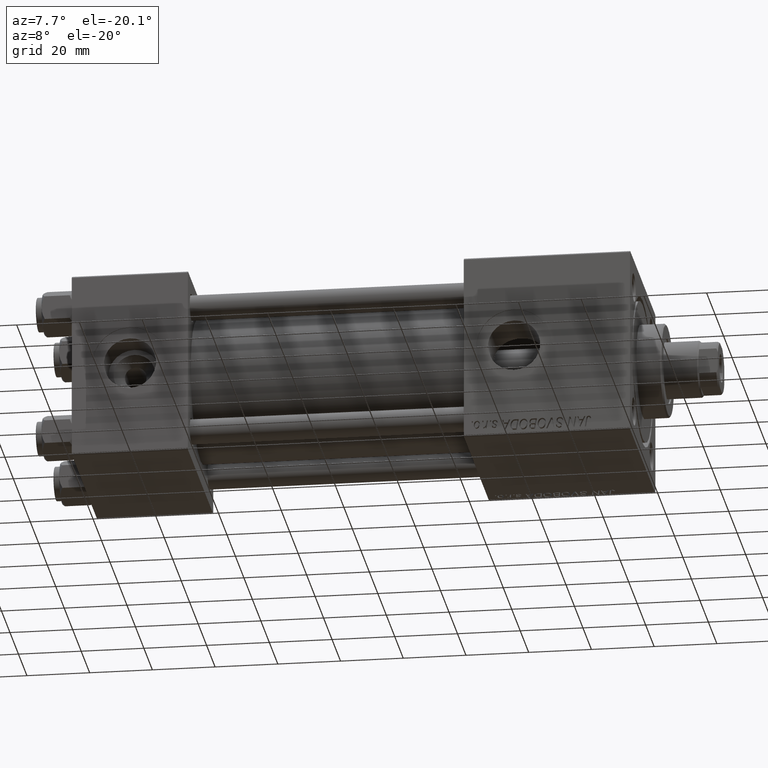
[diagram: clean part render]
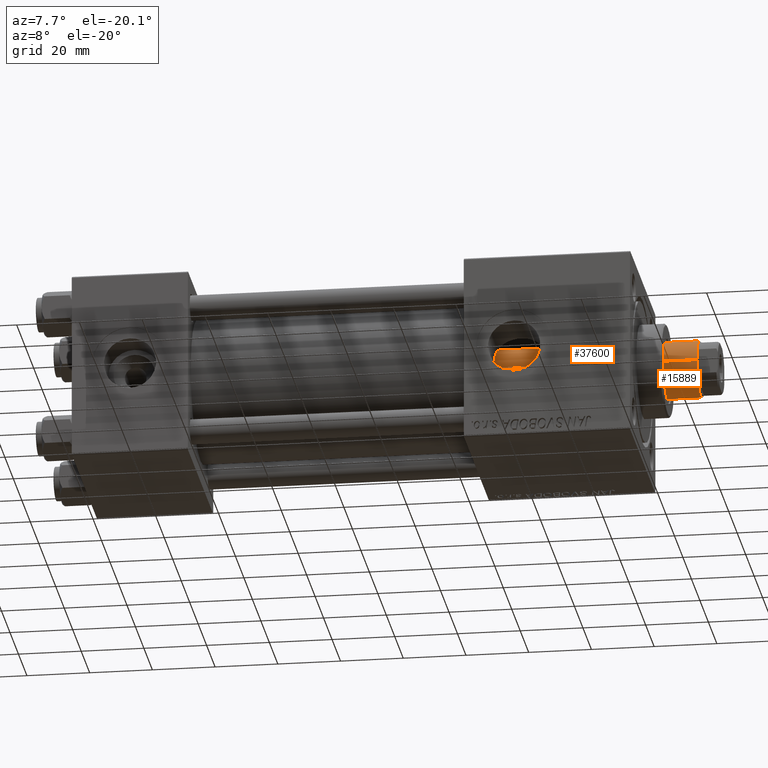
[diagram: same view with one multi-face feature highlighted, each face labeled with its STEP entity id]
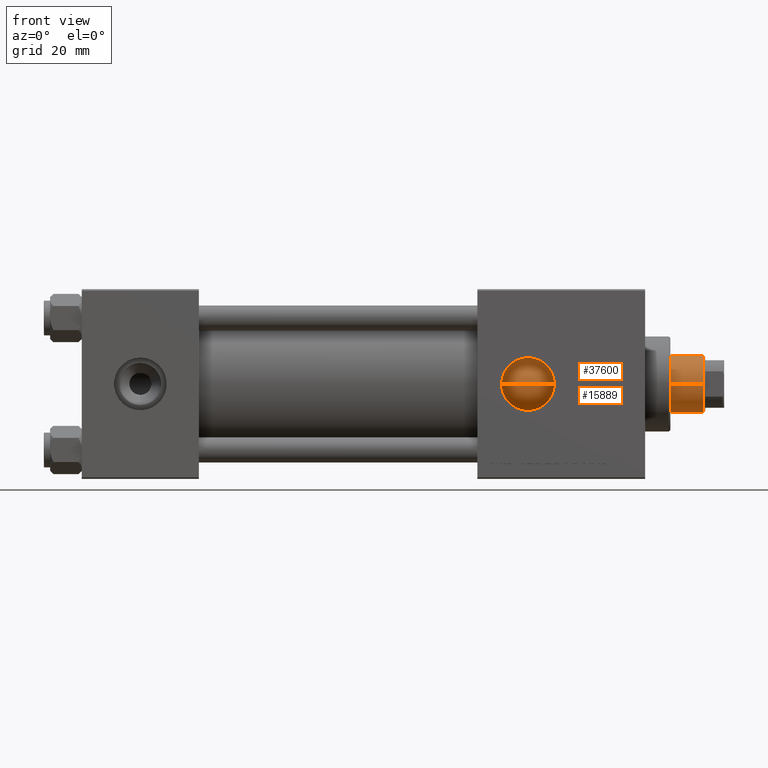
[diagram: same view with one multi-face feature highlighted, each face labeled with its STEP entity id]
A machine part, auxiliary view. The highlighted faces form ONE feature: a constant-radius fillet chain: 2 tangent blend faces with common blend radius 9 mm. The faces share edges in the B-rep.
A second angle (front view) of the same feature is appended — it is thin or edge-on in the first view.
Their STEP definitions:
[1] entity #15889 (Cylinder):
#1291 = DIRECTION ( 'NONE',  ( 1.000000000000000000, 0.000000000000000000, 0.000000000000000000 ) ) ;
#2055 = EDGE_CURVE ( 'NONE', #18098, #21795, #17905, .T. ) ;
#2805 = CARTESIAN_POINT ( 'NONE',  ( -9.000000000000000000, 0.000000000000000000, 159.5000000000000853 ) ) ;
#3139 = DIRECTION ( 'NONE',  ( -0.000000000000000000, -0.000000000000000000, -1.000000000000000000 ) ) ;
#3195 = EDGE_LOOP ( 'NONE', ( #49675, #43947, #26848, #43307 ) ) ;
#4115 = AXIS2_PLACEMENT_3D ( 'NONE', #48935, #18721, #6032 ) ;
#6032 = DIRECTION ( 'NONE',  ( 1.000000000000000000, 0.000000000000000000, 0.000000000000000000 ) ) ;
#7223 = CARTESIAN_POINT ( 'NONE',  ( 9.000000000000000000, 1.102182119232617517E-15, 160.0000000000000000 ) ) ;
#8074 = EDGE_CURVE ( 'NONE', #21795, #19104, #20091, .T. ) ;
#13131 = CARTESIAN_POINT ( 'NONE',  ( 9.000000000000000000, 1.102182119232617517E-15, 38.00000000000000000 ) ) ;
#13887 = CIRCLE ( 'NONE', #4115, 9.000000000000000000 ) ;
#14589 = FACE_OUTER_BOUND ( 'NONE', #3195, .T. ) ;
#15621 = EDGE_CURVE ( 'NONE', #50178, #19104, #35673, .T. ) ;
#15889 = ADVANCED_FACE ( 'NONE', ( #14589 ), #30057, .T. ) ;
#17905 = LINE ( 'NONE', #7223, #27615 ) ;
#18098 = VERTEX_POINT ( 'NONE', #45794 ) ;
#18721 = DIRECTION ( 'NONE',  ( 0.000000000000000000, 0.000000000000000000, -1.000000000000000000 ) ) ;
#19104 = VERTEX_POINT ( 'NONE', #47177 ) ;
#19956 = CARTESIAN_POINT ( 'NONE',  ( -9.000000000000000000, 0.000000000000000000, 160.0000000000000000 ) ) ;
#20091 = CIRCLE ( 'NONE', #49248, 9.000000000000000000 ) ;
#20194 = EDGE_CURVE ( 'NONE', #50178, #18098, #13887, .T. ) ;
#21795 = VERTEX_POINT ( 'NONE', #13131 ) ;
#22700 = DIRECTION ( 'NONE',  ( -1.000000000000000000, 0.000000000000000000, 0.000000000000000000 ) ) ;
#26508 = DIRECTION ( 'NONE',  ( -0.000000000000000000, -0.000000000000000000, -1.000000000000000000 ) ) ;
#26848 = ORIENTED_EDGE ( 'NONE', *, *, #8074, .T. ) ;
#27615 = VECTOR ( 'NONE', #26508, 1000.000000000000000 ) ;
#27969 = DIRECTION ( 'NONE',  ( 0.000000000000000000, 0.000000000000000000, 1.000000000000000000 ) ) ;
#28294 = AXIS2_PLACEMENT_3D ( 'NONE', #42250, #3139, #22700 ) ;
#30057 = CYLINDRICAL_SURFACE ( 'NONE', #28294, 9.000000000000000000 ) ;
#35673 = LINE ( 'NONE', #19956, #42114 ) ;
#42114 = VECTOR ( 'NONE', #47611, 1000.000000000000000 ) ;
#42250 = CARTESIAN_POINT ( 'NONE',  ( 0.000000000000000000, 0.000000000000000000, 160.0000000000000000 ) ) ;
#43307 = ORIENTED_EDGE ( 'NONE', *, *, #15621, .F. ) ;
#43947 = ORIENTED_EDGE ( 'NONE', *, *, #2055, .T. ) ;
#45794 = CARTESIAN_POINT ( 'NONE',  ( 9.000000000000000000, 1.102182119232617517E-15, 159.5000000000000853 ) ) ;
#47177 = CARTESIAN_POINT ( 'NONE',  ( -9.000000000000000000, 0.000000000000000000, 38.00000000000000000 ) ) ;
#47611 = DIRECTION ( 'NONE',  ( -0.000000000000000000, -0.000000000000000000, -1.000000000000000000 ) ) ;
#47767 = CARTESIAN_POINT ( 'NONE',  ( 0.000000000000000000, 0.000000000000000000, 38.00000000000000000 ) ) ;
#48935 = CARTESIAN_POINT ( 'NONE',  ( 0.000000000000000000, 0.000000000000000000, 159.5000000000000853 ) ) ;
#49248 = AXIS2_PLACEMENT_3D ( 'NONE', #47767, #27969, #1291 ) ;
#49675 = ORIENTED_EDGE ( 'NONE', *, *, #20194, .T. ) ;
#50178 = VERTEX_POINT ( 'NONE', #2805 ) ;
[2] entity #37600 (Cylinder):
#413 = AXIS2_PLACEMENT_3D ( 'NONE', #9680, #36578, #40138 ) ;
#1542 = FACE_OUTER_BOUND ( 'NONE', #50124, .T. ) ;
#2055 = EDGE_CURVE ( 'NONE', #18098, #21795, #17905, .T. ) ;
#2805 = CARTESIAN_POINT ( 'NONE',  ( -9.000000000000000000, 0.000000000000000000, 159.5000000000000853 ) ) ;
#4676 = CIRCLE ( 'NONE', #23326, 9.000000000000000000 ) ;
#7223 = CARTESIAN_POINT ( 'NONE',  ( 9.000000000000000000, 1.102182119232617517E-15, 160.0000000000000000 ) ) ;
#9680 = CARTESIAN_POINT ( 'NONE',  ( 0.000000000000000000, 0.000000000000000000, 160.0000000000000000 ) ) ;
#10884 = DIRECTION ( 'NONE',  ( 0.000000000000000000, 0.000000000000000000, 1.000000000000000000 ) ) ;
#13131 = CARTESIAN_POINT ( 'NONE',  ( 9.000000000000000000, 1.102182119232617517E-15, 38.00000000000000000 ) ) ;
#15003 = CIRCLE ( 'NONE', #48264, 9.000000000000000000 ) ;
#15621 = EDGE_CURVE ( 'NONE', #50178, #19104, #35673, .T. ) ;
#16887 = ORIENTED_EDGE ( 'NONE', *, *, #44979, .T. ) ;
#17905 = LINE ( 'NONE', #7223, #27615 ) ;
#18098 = VERTEX_POINT ( 'NONE', #45794 ) ;
#19104 = VERTEX_POINT ( 'NONE', #47177 ) ;
#19956 = CARTESIAN_POINT ( 'NONE',  ( -9.000000000000000000, 0.000000000000000000, 160.0000000000000000 ) ) ;
#20305 = DIRECTION ( 'NONE',  ( 0.000000000000000000, 0.000000000000000000, -1.000000000000000000 ) ) ;
#20552 = DIRECTION ( 'NONE',  ( 1.000000000000000000, 0.000000000000000000, 0.000000000000000000 ) ) ;
#21795 = VERTEX_POINT ( 'NONE', #13131 ) ;
#23326 = AXIS2_PLACEMENT_3D ( 'NONE', #29937, #10884, #27127 ) ;
#24352 = CARTESIAN_POINT ( 'NONE',  ( 0.000000000000000000, 0.000000000000000000, 159.5000000000000853 ) ) ;
#24654 = CYLINDRICAL_SURFACE ( 'NONE', #413, 9.000000000000000000 ) ;
#26508 = DIRECTION ( 'NONE',  ( -0.000000000000000000, -0.000000000000000000, -1.000000000000000000 ) ) ;
#27127 = DIRECTION ( 'NONE',  ( 1.000000000000000000, 0.000000000000000000, 0.000000000000000000 ) ) ;
#27615 = VECTOR ( 'NONE', #26508, 1000.000000000000000 ) ;
#29937 = CARTESIAN_POINT ( 'NONE',  ( 0.000000000000000000, 0.000000000000000000, 38.00000000000000000 ) ) ;
#31339 = ORIENTED_EDGE ( 'NONE', *, *, #2055, .F. ) ;
#34096 = EDGE_CURVE ( 'NONE', #18098, #50178, #15003, .T. ) ;
#35673 = LINE ( 'NONE', #19956, #42114 ) ;
#36559 = ORIENTED_EDGE ( 'NONE', *, *, #15621, .T. ) ;
#36578 = DIRECTION ( 'NONE',  ( -0.000000000000000000, -0.000000000000000000, -1.000000000000000000 ) ) ;
#37600 = ADVANCED_FACE ( 'NONE', ( #1542 ), #24654, .T. ) ;
#40138 = DIRECTION ( 'NONE',  ( -1.000000000000000000, 0.000000000000000000, 0.000000000000000000 ) ) ;
#42114 = VECTOR ( 'NONE', #47611, 1000.000000000000000 ) ;
#44979 = EDGE_CURVE ( 'NONE', #19104, #21795, #4676, .T. ) ;
#45794 = CARTESIAN_POINT ( 'NONE',  ( 9.000000000000000000, 1.102182119232617517E-15, 159.5000000000000853 ) ) ;
#47177 = CARTESIAN_POINT ( 'NONE',  ( -9.000000000000000000, 0.000000000000000000, 38.00000000000000000 ) ) ;
#47611 = DIRECTION ( 'NONE',  ( -0.000000000000000000, -0.000000000000000000, -1.000000000000000000 ) ) ;
#48006 = ORIENTED_EDGE ( 'NONE', *, *, #34096, .T. ) ;
#48264 = AXIS2_PLACEMENT_3D ( 'NONE', #24352, #20305, #20552 ) ;
#50124 = EDGE_LOOP ( 'NONE', ( #31339, #48006, #36559, #16887 ) ) ;
#50178 = VERTEX_POINT ( 'NONE', #2805 ) ;